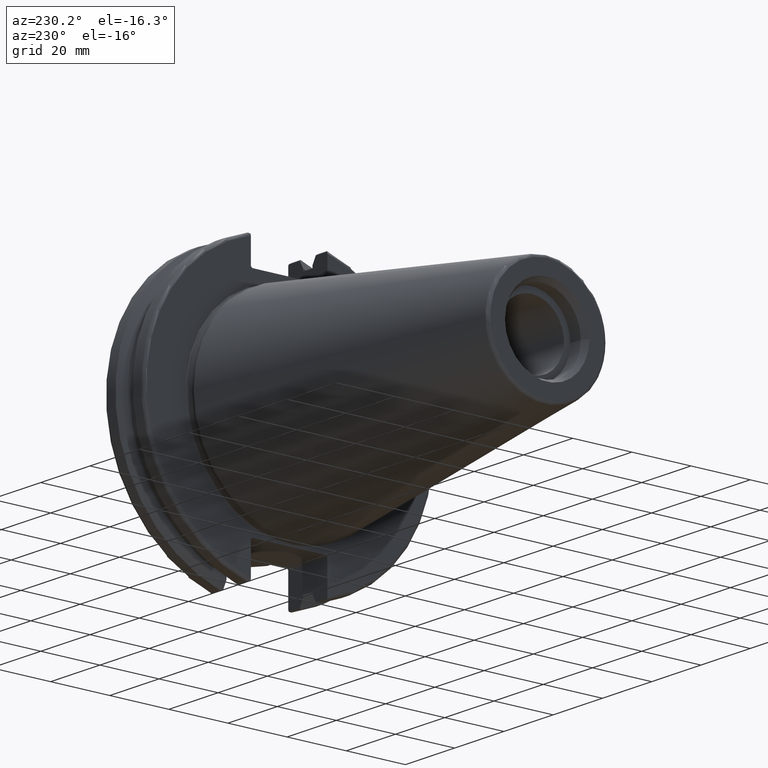
[diagram: clean part render]
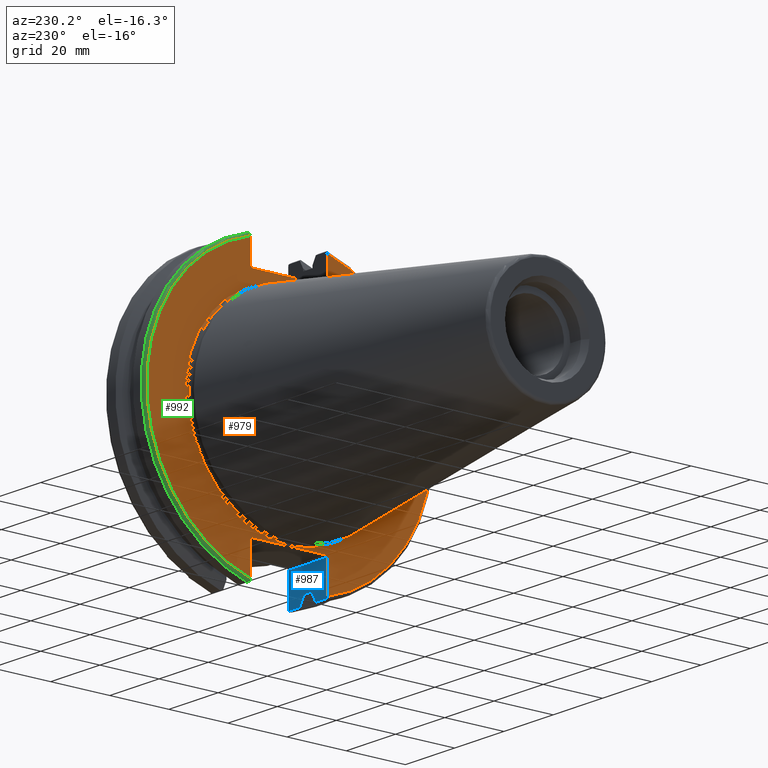
[diagram: same view with three faces highlighted in distinct colors, each labeled with its STEP entity id]
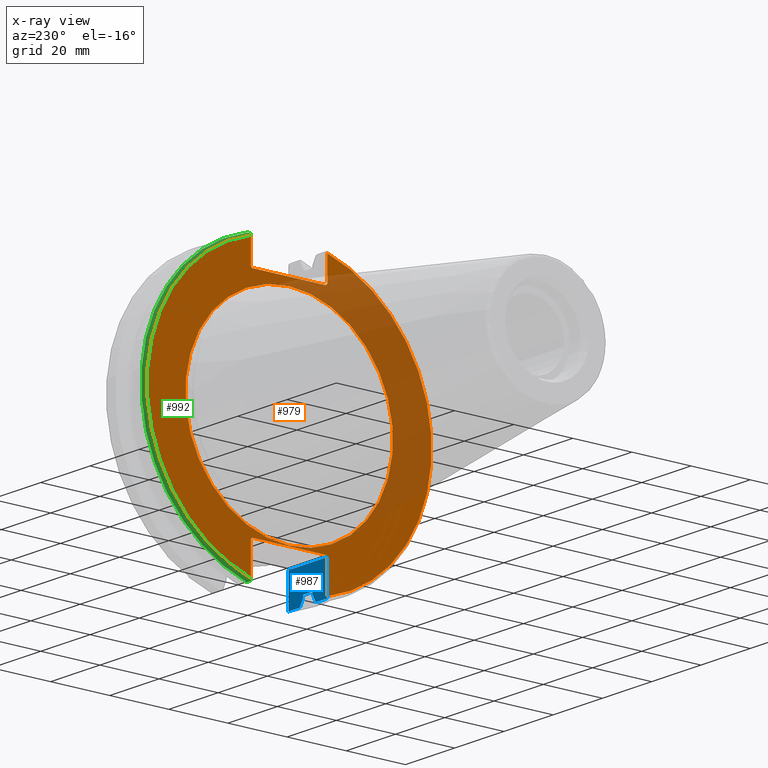
[diagram: x-ray of the same camera — body ghosted, the three highlighted faces saturated]
A machine part, auxiliary view with three faces highlighted in distinct colors.
The next image is the same camera in x-ray (body ghosted, the three faces saturated) — at least one of them is partly hidden behind the body in this view.
Their STEP definitions:

[orange] entity #979 — the highlighted planar face has unit normal (-1, 0, 0).
#33=FACE_BOUND('',#309,.T.);
#39=PLANE('',#1077);
#96=LINE('',#1508,#164);
#97=LINE('',#1510,#165);
#98=LINE('',#1512,#166);
#99=LINE('',#1514,#167);
#100=LINE('',#1516,#168);
#101=LINE('',#1520,#169);
#102=LINE('',#1522,#170);
#103=LINE('',#1524,#171);
#104=LINE('',#1526,#172);
#105=LINE('',#1527,#173);
#164=VECTOR('',#1220,10.);
#165=VECTOR('',#1221,10.);
#166=VECTOR('',#1222,10.);
#167=VECTOR('',#1223,10.);
#168=VECTOR('',#1224,10.);
#169=VECTOR('',#1227,10.);
#170=VECTOR('',#1228,10.);
#171=VECTOR('',#1229,10.);
#172=VECTOR('',#1230,10.);
#173=VECTOR('',#1231,10.);
#249=FACE_OUTER_BOUND('',#308,.T.);
#308=EDGE_LOOP('',(#701,#702,#703,#704,#705,#706,#707,#708,#709,#710,#711,
#712));
#309=EDGE_LOOP('',(#713));
#376=CIRCLE('',#1075,35.125);
#378=CIRCLE('',#1078,48.2125);
#379=CIRCLE('',#1079,48.2125);
#425=VERTEX_POINT('',#1499);
#426=VERTEX_POINT('',#1504);
#427=VERTEX_POINT('',#1505);
#428=VERTEX_POINT('',#1507);
#429=VERTEX_POINT('',#1509);
#430=VERTEX_POINT('',#1511);
#431=VERTEX_POINT('',#1513);
#432=VERTEX_POINT('',#1515);
#433=VERTEX_POINT('',#1517);
#434=VERTEX_POINT('',#1519);
#435=VERTEX_POINT('',#1521);
#436=VERTEX_POINT('',#1523);
#437=VERTEX_POINT('',#1525);
#531=EDGE_CURVE('',#425,#425,#376,.T.);
#533=EDGE_CURVE('',#426,#427,#378,.T.);
#534=EDGE_CURVE('',#426,#428,#96,.T.);
#535=EDGE_CURVE('',#429,#428,#97,.T.);
#536=EDGE_CURVE('',#429,#430,#98,.T.);
#537=EDGE_CURVE('',#431,#430,#99,.T.);
#538=EDGE_CURVE('',#431,#432,#100,.T.);
#539=EDGE_CURVE('',#433,#432,#379,.T.);
#540=EDGE_CURVE('',#433,#434,#101,.T.);
#541=EDGE_CURVE('',#435,#434,#102,.T.);
#542=EDGE_CURVE('',#435,#436,#103,.T.);
#543=EDGE_CURVE('',#437,#436,#104,.T.);
#544=EDGE_CURVE('',#437,#427,#105,.T.);
#701=ORIENTED_EDGE('',*,*,#533,.F.);
#702=ORIENTED_EDGE('',*,*,#534,.T.);
#703=ORIENTED_EDGE('',*,*,#535,.F.);
#704=ORIENTED_EDGE('',*,*,#536,.T.);
#705=ORIENTED_EDGE('',*,*,#537,.F.);
#706=ORIENTED_EDGE('',*,*,#538,.T.);
#707=ORIENTED_EDGE('',*,*,#539,.F.);
#708=ORIENTED_EDGE('',*,*,#540,.T.);
#709=ORIENTED_EDGE('',*,*,#541,.F.);
#710=ORIENTED_EDGE('',*,*,#542,.T.);
#711=ORIENTED_EDGE('',*,*,#543,.F.);
#712=ORIENTED_EDGE('',*,*,#544,.T.);
#713=ORIENTED_EDGE('',*,*,#531,.F.);
#979=ADVANCED_FACE('',(#249,#33),#39,.T.);
#1075=AXIS2_PLACEMENT_3D('',#1501,#1212,#1213);
#1077=AXIS2_PLACEMENT_3D('',#1503,#1216,#1217);
#1078=AXIS2_PLACEMENT_3D('',#1506,#1218,#1219);
#1079=AXIS2_PLACEMENT_3D('',#1518,#1225,#1226);
#1212=DIRECTION('center_axis',(-1.,0.,0.));
#1213=DIRECTION('ref_axis',(0.,-1.,1.83697019872103E-16));
#1216=DIRECTION('center_axis',(-1.,0.,0.));
#1217=DIRECTION('ref_axis',(0.,0.,1.));
#1218=DIRECTION('center_axis',(1.,0.,0.));
#1219=DIRECTION('ref_axis',(0.,-1.,1.60812264967664E-16));
#1220=DIRECTION('',(0.,0.,-1.));
#1221=DIRECTION('',(0.,-0.707106781186549,0.707106781186546));
#1222=DIRECTION('',(0.,1.,0.));
#1223=DIRECTION('',(0.,-0.707106781186549,-0.707106781186546));
#1224=DIRECTION('',(0.,0.,1.));
#1225=DIRECTION('center_axis',(1.,0.,0.));
#1226=DIRECTION('ref_axis',(0.,1.,-6.12323399573677E-17));
#1227=DIRECTION('',(0.,0.,1.));
#1228=DIRECTION('',(0.,0.707106781186549,-0.707106781186546));
#1229=DIRECTION('',(0.,-1.,0.));
#1230=DIRECTION('',(0.,0.707106781186549,0.707106781186546));
#1231=DIRECTION('',(0.,0.,-1.));
#1499=CARTESIAN_POINT('',(3.175,-4.30157188200508E-15,35.125));
#1501=CARTESIAN_POINT('Origin',(3.175,0.,0.));
#1503=CARTESIAN_POINT('Origin',(3.175,49.2125,0.));
#1504=CARTESIAN_POINT('',(3.175,-12.95,46.4407434937254));
#1505=CARTESIAN_POINT('',(3.175,-12.95,-46.4407434937254));
#1506=CARTESIAN_POINT('Origin',(3.175,0.,0.));
#1507=CARTESIAN_POINT('',(3.175,-12.95,38.219));
#1508=CARTESIAN_POINT('',(3.175,-12.95,18.8595));
#1509=CARTESIAN_POINT('',(3.175,-12.45,37.719));
#1510=CARTESIAN_POINT('',(3.175,12.2703750000001,12.998625));
#1511=CARTESIAN_POINT('',(3.175,12.45,37.719));
#1512=CARTESIAN_POINT('',(3.175,24.60625,37.719));
#1513=CARTESIAN_POINT('',(3.175,12.95,38.219));
#1514=CARTESIAN_POINT('',(3.175,12.335875,37.604875));
#1515=CARTESIAN_POINT('',(3.175,12.95,46.4407434937254));
#1516=CARTESIAN_POINT('',(3.175,12.95,18.8595));
#1517=CARTESIAN_POINT('',(3.175,12.95,-46.4407434937254));
#1518=CARTESIAN_POINT('Origin',(3.175,0.,0.));
#1519=CARTESIAN_POINT('',(3.175,12.95,-35.806));
#1520=CARTESIAN_POINT('',(3.175,12.95,-17.653));
#1521=CARTESIAN_POINT('',(3.175,12.45,-35.306));
#1522=CARTESIAN_POINT('',(3.175,12.939125,-35.795125));
#1523=CARTESIAN_POINT('',(3.175,-12.45,-35.306));
#1524=CARTESIAN_POINT('',(3.175,24.60625,-35.306));
#1525=CARTESIAN_POINT('',(3.175,-12.95,-35.806));
#1526=CARTESIAN_POINT('',(3.175,11.6671250000001,-11.188875));
#1527=CARTESIAN_POINT('',(3.175,-12.95,-17.653));

[blue] entity #987 — the highlighted planar face has unit normal (0, -1, 0).
#20=(
BOUNDED_CURVE()
B_SPLINE_CURVE(2,(#1688,#1689,#1690),.UNSPECIFIED.,.F.,.F.)
B_SPLINE_CURVE_WITH_KNOTS((3,3),(0.,0.275823910673016),.UNSPECIFIED.)
CURVE()
GEOMETRIC_REPRESENTATION_ITEM()
RATIONAL_B_SPLINE_CURVE((1.,1.00038235574188,1.00012873636688))
REPRESENTATION_ITEM('')
);
#21=(
BOUNDED_CURVE()
B_SPLINE_CURVE(2,(#1698,#1699,#1700),.UNSPECIFIED.,.F.,.F.)
B_SPLINE_CURVE_WITH_KNOTS((3,3),(0.0558332664508419,0.331657177124507),
 .UNSPECIFIED.)
CURVE()
GEOMETRIC_REPRESENTATION_ITEM()
RATIONAL_B_SPLINE_CURVE((1.00012873636699,1.00038235574223,1.))
REPRESENTATION_ITEM('')
);
#44=PLANE('',#1092);
#72=B_SPLINE_CURVE_WITH_KNOTS('',3,(#1626,#1627,#1628,#1629,#1630,#1631),
 .UNSPECIFIED.,.F.,.F.,(4,2,4),(0.097707143645253,0.112358403262293,0.150882178076498),
 .UNSPECIFIED.);
#77=B_SPLINE_CURVE_WITH_KNOTS('',3,(#1703,#1704,#1705,#1706,#1707,#1708),
 .UNSPECIFIED.,.F.,.F.,(4,2,4),(0.452859340315922,0.491741138916218,0.506051994111223),
 .UNSPECIFIED.);
#105=LINE('',#1527,#173);
#122=LINE('',#1620,#190);
#131=LINE('',#1686,#199);
#132=LINE('',#1692,#200);
#133=LINE('',#1694,#201);
#134=LINE('',#1696,#202);
#135=LINE('',#1702,#203);
#136=LINE('',#1709,#204);
#173=VECTOR('',#1231,10.);
#190=VECTOR('',#1266,10.);
#199=VECTOR('',#1283,10.);
#200=VECTOR('',#1284,10.);
#201=VECTOR('',#1285,10.);
#202=VECTOR('',#1286,10.);
#203=VECTOR('',#1287,10.);
#204=VECTOR('',#1288,10.);
#257=FACE_OUTER_BOUND('',#317,.T.);
#317=EDGE_LOOP('',(#773,#774,#775,#776,#777,#778,#779,#780,#781,#782,#783,
#784));
#427=VERTEX_POINT('',#1505);
#437=VERTEX_POINT('',#1525);
#460=VERTEX_POINT('',#1617);
#461=VERTEX_POINT('',#1619);
#463=VERTEX_POINT('',#1625);
#474=VERTEX_POINT('',#1685);
#475=VERTEX_POINT('',#1687);
#476=VERTEX_POINT('',#1691);
#477=VERTEX_POINT('',#1693);
#478=VERTEX_POINT('',#1695);
#479=VERTEX_POINT('',#1697);
#480=VERTEX_POINT('',#1701);
#544=EDGE_CURVE('',#437,#427,#105,.T.);
#573=EDGE_CURVE('',#460,#461,#122,.T.);
#576=EDGE_CURVE('',#463,#460,#72,.T.);
#590=EDGE_CURVE('',#474,#463,#131,.T.);
#591=EDGE_CURVE('',#475,#474,#20,.T.);
#592=EDGE_CURVE('',#476,#475,#132,.T.);
#593=EDGE_CURVE('',#477,#476,#133,.T.);
#594=EDGE_CURVE('',#478,#477,#134,.T.);
#595=EDGE_CURVE('',#479,#478,#21,.T.);
#596=EDGE_CURVE('',#480,#479,#135,.T.);
#597=EDGE_CURVE('',#427,#480,#77,.T.);
#598=EDGE_CURVE('',#461,#437,#136,.T.);
#773=ORIENTED_EDGE('',*,*,#576,.F.);
#774=ORIENTED_EDGE('',*,*,#590,.F.);
#775=ORIENTED_EDGE('',*,*,#591,.F.);
#776=ORIENTED_EDGE('',*,*,#592,.F.);
#777=ORIENTED_EDGE('',*,*,#593,.F.);
#778=ORIENTED_EDGE('',*,*,#594,.F.);
#779=ORIENTED_EDGE('',*,*,#595,.F.);
#780=ORIENTED_EDGE('',*,*,#596,.F.);
#781=ORIENTED_EDGE('',*,*,#597,.F.);
#782=ORIENTED_EDGE('',*,*,#544,.F.);
#783=ORIENTED_EDGE('',*,*,#598,.F.);
#784=ORIENTED_EDGE('',*,*,#573,.F.);
#987=ADVANCED_FACE('',(#257),#44,.F.);
#1092=AXIS2_PLACEMENT_3D('',#1684,#1281,#1282);
#1231=DIRECTION('',(0.,0.,-1.));
#1266=DIRECTION('',(0.,0.,1.));
#1281=DIRECTION('center_axis',(2.63163976207445E-16,-1.,0.));
#1282=DIRECTION('ref_axis',(-1.,-2.63163976207445E-16,0.));
#1283=DIRECTION('',(1.,2.63163976207445E-16,0.));
#1284=DIRECTION('',(0.,0.,-1.));
#1285=DIRECTION('',(1.,0.,0.));
#1286=DIRECTION('',(0.,0.,1.));
#1287=DIRECTION('',(1.,2.63163976207445E-16,0.));
#1288=DIRECTION('',(-1.,-2.63163976207445E-16,0.));
#1505=CARTESIAN_POINT('',(3.175,-12.95,-46.4407434937254));
#1525=CARTESIAN_POINT('',(3.175,-12.95,-35.806));
#1527=CARTESIAN_POINT('',(3.175,-12.95,-17.653));
#1617=CARTESIAN_POINT('',(19.05,-12.95,-46.4407434937254));
#1619=CARTESIAN_POINT('',(19.05,-12.95,-35.806));
#1620=CARTESIAN_POINT('',(19.05,-12.95,-17.653));
#1625=CARTESIAN_POINT('',(18.9055020570566,-12.95,-46.9780755322917));
#1626=CARTESIAN_POINT('Ctrl Pts',(18.9055020570566,-12.95,-46.9780755322917));
#1627=CARTESIAN_POINT('Ctrl Pts',(18.9322353702005,-12.95,-46.9322596399785));
#1628=CARTESIAN_POINT('Ctrl Pts',(18.9549831813775,-12.95,-46.8849952622217));
#1629=CARTESIAN_POINT('Ctrl Pts',(19.0209992543299,-12.95,-46.7204975987179));
#1630=CARTESIAN_POINT('Ctrl Pts',(19.05,-12.95,-46.5691560764394));
#1631=CARTESIAN_POINT('Ctrl Pts',(19.05,-12.95,-46.4407434937254));
#1684=CARTESIAN_POINT('Origin',(20.05,-12.95,-35.306));
#1685=CARTESIAN_POINT('',(14.3818103943757,-12.95,-46.9780755322917));
#1686=CARTESIAN_POINT('',(16.8551045170244,-12.95,-46.9780755322917));
#1687=CARTESIAN_POINT('',(13.0491,-12.95,-44.5791147973604));
#1688=CARTESIAN_POINT('Ctrl Pts',(13.0491,-12.95,-44.5791147973604));
#1689=CARTESIAN_POINT('Ctrl Pts',(13.697995509465,-12.95,-45.7494966802572));
#1690=CARTESIAN_POINT('Ctrl Pts',(14.3818103943757,-12.95,-46.9780755322917));
#1691=CARTESIAN_POINT('',(13.0491,-12.95,-43.7678716897452));
#1692=CARTESIAN_POINT('',(13.0491,-12.95,-17.653));
#1693=CARTESIAN_POINT('',(9.2191,-12.95,-43.7678716897452));
#1694=CARTESIAN_POINT('',(11.1341,-12.95,-43.7678716897452));
#1695=CARTESIAN_POINT('',(9.2191,-12.95,-44.5791147973604));
#1696=CARTESIAN_POINT('',(9.2191,-12.95,-17.653));
#1697=CARTESIAN_POINT('',(7.88638960562425,-12.95,-46.9780755322917));
#1698=CARTESIAN_POINT('Ctrl Pts',(7.88638960562425,-12.95,-46.9780755322917));
#1699=CARTESIAN_POINT('Ctrl Pts',(8.5702044905427,-12.95,-45.7494966802433));
#1700=CARTESIAN_POINT('Ctrl Pts',(9.2191,-12.95,-44.5791147973604));
#1701=CARTESIAN_POINT('',(3.31949794294343,-12.95,-46.9780755322917));
#1702=CARTESIAN_POINT('',(5.39149548297564,-12.95,-46.9780755322917));
#1703=CARTESIAN_POINT('Ctrl Pts',(3.175,-12.95,-46.4407434937254));
#1704=CARTESIAN_POINT('Ctrl Pts',(3.175,-12.95,-46.5703494890597));
#1705=CARTESIAN_POINT('Ctrl Pts',(3.20453530071253,-12.95,-46.7230464903732));
#1706=CARTESIAN_POINT('Ctrl Pts',(3.27115672912336,-12.95,-46.887363294568));
#1707=CARTESIAN_POINT('Ctrl Pts',(3.29341556483838,-12.95,-46.9333752207329));
#1708=CARTESIAN_POINT('Ctrl Pts',(3.31949794294343,-12.95,-46.9780755322917));
#1709=CARTESIAN_POINT('',(19.06875,-12.95,-35.806));

[green] entity #992 — the highlighted toroidal blend (fillet) surface has major radius 48.2125 mm and minor (blend) radius 1 mm.
#71=B_SPLINE_CURVE_WITH_KNOTS('',3,(#1582,#1583,#1584,#1585,#1586,#1587),
 .UNSPECIFIED.,.F.,.F.,(4,2,4),(0.0976892167532858,0.112000071948292,0.150881870548587),
 .UNSPECIFIED.);
#80=B_SPLINE_CURVE_WITH_KNOTS('',3,(#1747,#1748,#1749,#1750,#1751,#1752,
#1753,#1754),.UNSPECIFIED.,.F.,.F.,(4,2,2,4),(-0.104075769062722,-0.0730268503455479,
-0.0343639873656265,0.),.UNSPECIFIED.);
#81=B_SPLINE_CURVE_WITH_KNOTS('',3,(#1757,#1758,#1759,#1760,#1761,#1762,
#1763,#1764),.UNSPECIFIED.,.F.,.F.,(4,2,2,4),(0.,0.0343639873656266,0.0730268503455482,
0.104075769062722),.UNSPECIFIED.);
#82=B_SPLINE_CURVE_WITH_KNOTS('',3,(#1765,#1766,#1767,#1768,#1769,#1770),
 .UNSPECIFIED.,.F.,.F.,(4,2,4),(0.452859340315923,0.491741138916218,0.506051994111224),
 .UNSPECIFIED.);
#262=FACE_OUTER_BOUND('',#322,.T.);
#322=EDGE_LOOP('',(#803,#804,#805,#806,#807,#808));
#379=CIRCLE('',#1079,48.2125);
#387=CIRCLE('',#1100,49.2125);
#432=VERTEX_POINT('',#1515);
#433=VERTEX_POINT('',#1517);
#448=VERTEX_POINT('',#1581);
#485=VERTEX_POINT('',#1745);
#486=VERTEX_POINT('',#1746);
#487=VERTEX_POINT('',#1755);
#539=EDGE_CURVE('',#433,#432,#379,.T.);
#558=EDGE_CURVE('',#448,#433,#71,.T.);
#607=EDGE_CURVE('',#485,#486,#80,.T.);
#608=EDGE_CURVE('',#486,#487,#387,.T.);
#609=EDGE_CURVE('',#487,#448,#81,.T.);
#610=EDGE_CURVE('',#432,#485,#82,.T.);
#803=ORIENTED_EDGE('',*,*,#607,.T.);
#804=ORIENTED_EDGE('',*,*,#608,.T.);
#805=ORIENTED_EDGE('',*,*,#609,.T.);
#806=ORIENTED_EDGE('',*,*,#558,.T.);
#807=ORIENTED_EDGE('',*,*,#539,.T.);
#808=ORIENTED_EDGE('',*,*,#610,.T.);
#968=TOROIDAL_SURFACE('',#1099,48.2125,1.);
#992=ADVANCED_FACE('',(#262),#968,.T.);
#1079=AXIS2_PLACEMENT_3D('',#1518,#1225,#1226);
#1099=AXIS2_PLACEMENT_3D('',#1744,#1303,#1304);
#1100=AXIS2_PLACEMENT_3D('',#1756,#1305,#1306);
#1225=DIRECTION('center_axis',(1.,0.,0.));
#1226=DIRECTION('ref_axis',(0.,1.,-6.12323399573677E-17));
#1303=DIRECTION('center_axis',(1.,0.,0.));
#1304=DIRECTION('ref_axis',(0.,0.,-1.));
#1305=DIRECTION('center_axis',(-1.,0.,0.));
#1306=DIRECTION('ref_axis',(0.,1.,-6.12323399573677E-17));
#1515=CARTESIAN_POINT('',(3.175,12.95,46.4407434937254));
#1517=CARTESIAN_POINT('',(3.175,12.95,-46.4407434937254));
#1518=CARTESIAN_POINT('Origin',(3.175,0.,0.));
#1581=CARTESIAN_POINT('',(3.31949794294344,12.95,-46.9780755322918));
#1582=CARTESIAN_POINT('Ctrl Pts',(3.31949794294344,12.95,-46.9780755322918));
#1583=CARTESIAN_POINT('Ctrl Pts',(3.29341556483839,12.95,-46.9333752207329));
#1584=CARTESIAN_POINT('Ctrl Pts',(3.27115672912336,12.95,-46.887363294568));
#1585=CARTESIAN_POINT('Ctrl Pts',(3.20453530071253,12.95,-46.7230464903732));
#1586=CARTESIAN_POINT('Ctrl Pts',(3.175,12.95,-46.5703494890597));
#1587=CARTESIAN_POINT('Ctrl Pts',(3.175,12.95,-46.4407434937254));
#1744=CARTESIAN_POINT('Origin',(4.175,0.,0.));
#1745=CARTESIAN_POINT('',(3.31949794294344,12.95,46.9780755322918));
#1746=CARTESIAN_POINT('',(4.175,13.4317035994433,47.3440544806494));
#1747=CARTESIAN_POINT('Ctrl Pts',(3.31949794294344,12.95,46.9780755322918));
#1748=CARTESIAN_POINT('Ctrl Pts',(3.36785032278754,13.0300321736484,47.0388807469102));
#1749=CARTESIAN_POINT('Ctrl Pts',(3.43235971798504,13.1083611826073,47.0983919657547));
#1750=CARTESIAN_POINT('Ctrl Pts',(3.58507512107923,13.2478194810695,47.2043467509586));
#1751=CARTESIAN_POINT('Ctrl Pts',(3.70638116490965,13.3242014686233,47.2623787015413));
#1752=CARTESIAN_POINT('Ctrl Pts',(3.92661103245834,13.4067722493645,47.3251126473446));
#1753=CARTESIAN_POINT('Ctrl Pts',(4.06045337544791,13.4317035994433,47.3440544806494));
#1754=CARTESIAN_POINT('Ctrl Pts',(4.175,13.4317035994433,47.3440544806494));
#1755=CARTESIAN_POINT('',(4.175,13.4317035994433,-47.3440544806494));
#1756=CARTESIAN_POINT('Origin',(4.175,0.,0.));
#1757=CARTESIAN_POINT('Ctrl Pts',(4.175,13.4317035994433,-47.3440544806494));
#1758=CARTESIAN_POINT('Ctrl Pts',(4.06045337544791,13.4317035994433,-47.3440544806494));
#1759=CARTESIAN_POINT('Ctrl Pts',(3.92661103245834,13.4067722493645,-47.3251126473446));
#1760=CARTESIAN_POINT('Ctrl Pts',(3.70638116490964,13.3242014686232,-47.2623787015413));
#1761=CARTESIAN_POINT('Ctrl Pts',(3.58507512107923,13.2478194810695,-47.2043467509586));
#1762=CARTESIAN_POINT('Ctrl Pts',(3.43235971798504,13.1083611826073,-47.0983919657547));
#1763=CARTESIAN_POINT('Ctrl Pts',(3.36785032278754,13.0300321736484,-47.0388807469102));
#1764=CARTESIAN_POINT('Ctrl Pts',(3.31949794294344,12.95,-46.9780755322918));
#1765=CARTESIAN_POINT('Ctrl Pts',(3.175,12.95,46.4407434937254));
#1766=CARTESIAN_POINT('Ctrl Pts',(3.175,12.95,46.5703494890597));
#1767=CARTESIAN_POINT('Ctrl Pts',(3.20453530071253,12.95,46.7230464903732));
#1768=CARTESIAN_POINT('Ctrl Pts',(3.27115672912336,12.95,46.887363294568));
#1769=CARTESIAN_POINT('Ctrl Pts',(3.29341556483839,12.95,46.9333752207329));
#1770=CARTESIAN_POINT('Ctrl Pts',(3.31949794294344,12.95,46.9780755322918));